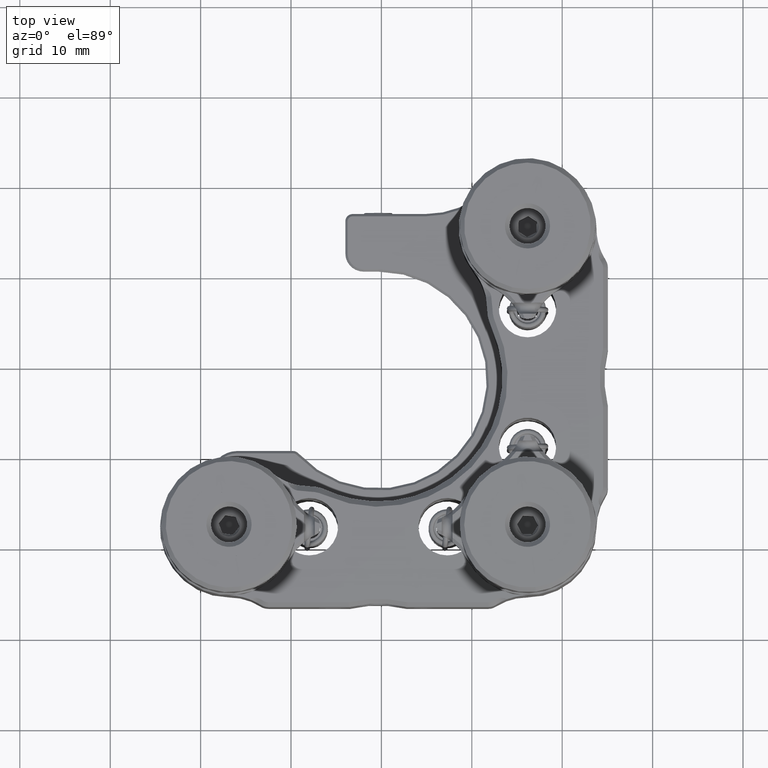
[diagram: clean part render]
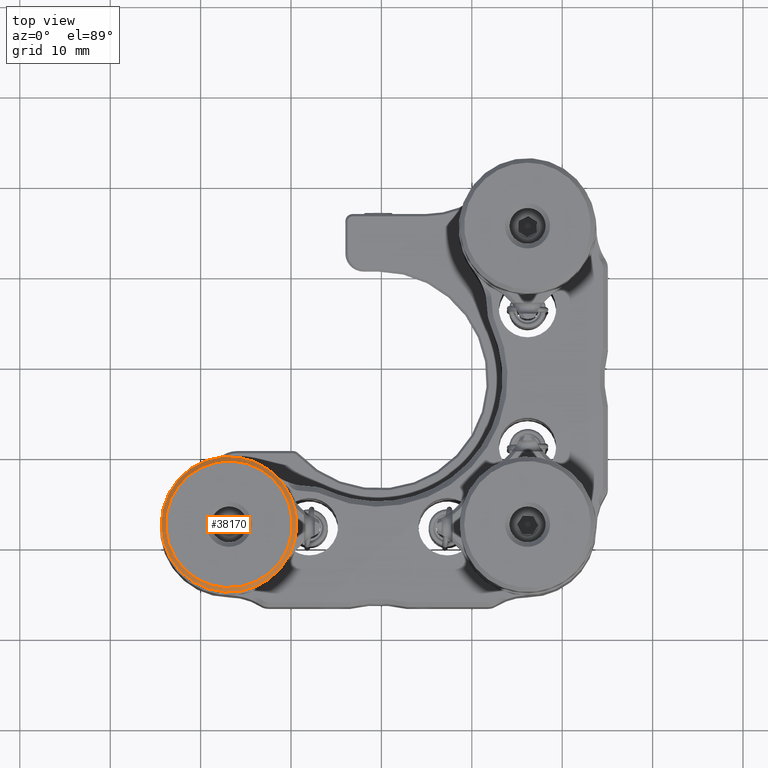
[diagram: same view with one face highlighted and labeled with its STEP entity id]
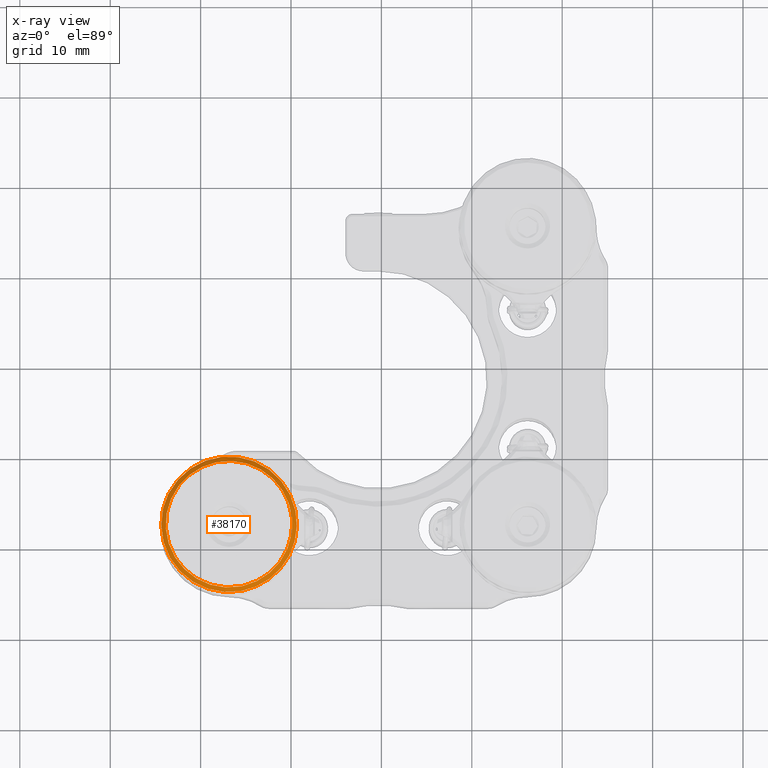
[diagram: x-ray of the same camera — body ghosted, the highlighted face saturated]
A machine part, top view. The second image highlights one B-rep face of the part: STEP entity #38170.
The next image is the same camera in x-ray: the body ghosted, the highlighted face saturated — about 0% of this face is hidden behind the body in this view.
In plain terms, the highlighted conical surface has half-angle 45 deg.
Its self-contained STEP definition (entity closure, byte-faithful):
#575 = DIRECTION ( 'NONE',  ( -0.9807418442196327302, -0.1953085635518161667, 0.000000000000000000 ) ) ;
#2692 = CARTESIAN_POINT ( 'NONE',  ( -35.37871953103136491, 5.272371085360878951, 53.31038921440163847 ) ) ;
#2857 = CIRCLE ( 'NONE', #33765, 7.500000000000001776 ) ;
#3399 = DIRECTION ( 'NONE',  ( -2.390930686497921843E-17, 1.478624013833668581E-16, -1.000000000000000000 ) ) ;
#4501 = EDGE_CURVE ( 'NONE', #50241, #55131, #25046, .T. ) ;
#5218 = ORIENTED_EDGE ( 'NONE', *, *, #14361, .T. ) ;
#8568 = ORIENTED_EDGE ( 'NONE', *, *, #49174, .F. ) ;
#8870 = DIRECTION ( 'NONE',  ( -0.9807418442196326192, -0.1953085635518160834, 0.000000000000000000 ) ) ;
#9776 = DIRECTION ( 'NONE',  ( 0.9807418442196326192, 0.1953085635518160834, 0.000000000000000000 ) ) ;
#11225 = DIRECTION ( 'NONE',  ( -0.9807418442196327302, -0.1953085635518161667, 0.000000000000000000 ) ) ;
#11308 = CARTESIAN_POINT ( 'NONE',  ( -29.50328443473926399, 13.57891162388715678, 52.81038921440163136 ) ) ;
#12335 = CARTESIAN_POINT ( 'NONE',  ( -36.85884826638650935, 12.11409739724853551, 53.30038921440164046 ) ) ;
#13790 = CIRCLE ( 'NONE', #51906, 6.999999999999994671 ) ;
#14361 = EDGE_CURVE ( 'NONE', #55131, #24962, #13790, .T. ) ;
#15744 = CARTESIAN_POINT ( 'NONE',  ( -38.22600821124921566, 18.97929030678595552, 53.31038921440163847 ) ) ;
#16168 = VERTEX_POINT ( 'NONE', #11308 ) ;
#16860 = CARTESIAN_POINT ( 'NONE',  ( -35.60307520004052861, 5.217494319947371118, 53.30038921440164046 ) ) ;
#17192 = AXIS2_PLACEMENT_3D ( 'NONE', #48561, #3399, #8870 ) ;
#17507 = DIRECTION ( 'NONE',  ( -0.9807418442196368380, -0.1953085635517951557, 0.000000000000000000 ) ) ;
#19626 = CARTESIAN_POINT ( 'NONE',  ( -36.85884826638650935, 12.11409739724853551, 53.31038921440163847 ) ) ;
#20577 = DIRECTION ( 'NONE',  ( -2.390930686497921843E-17, 1.478624013833668581E-16, -1.000000000000000000 ) ) ;
#20603 = DIRECTION ( 'NONE',  ( -2.390930686497921843E-17, 1.478624013833668581E-16, -1.000000000000000000 ) ) ;
#21371 = LINE ( 'NONE', #41050, #27194 ) ;
#22874 = EDGE_CURVE ( 'NONE', #31851, #34295, #34160, .T. ) ;
#24962 = VERTEX_POINT ( 'NONE', #2692 ) ;
#25046 = CIRCLE ( 'NONE', #41537, 6.999999999999994671 ) ;
#25277 = ORIENTED_EDGE ( 'NONE', *, *, #22874, .F. ) ;
#25888 = CARTESIAN_POINT ( 'NONE',  ( -36.85884826638650935, 12.11409739724853551, 52.81038921440163136 ) ) ;
#27194 = VECTOR ( 'NONE', #41994, 1000.000000000000114 ) ;
#27198 = DIRECTION ( 'NONE',  ( 2.390930686497921843E-17, -1.478624013833668581E-16, 1.000000000000000000 ) ) ;
#29784 = DIRECTION ( 'NONE',  ( -2.390930686497921843E-17, 1.478624013833668581E-16, -1.000000000000000000 ) ) ;
#31851 = VERTEX_POINT ( 'NONE', #42250 ) ;
#33765 = AXIS2_PLACEMENT_3D ( 'NONE', #25888, #29784, #9776 ) ;
#33805 = VECTOR ( 'NONE', #41699, 1000.000000000000114 ) ;
#34160 = CIRCLE ( 'NONE', #50640, 7.009999999999995346 ) ;
#34295 = VERTEX_POINT ( 'NONE', #51788 ) ;
#38077 = EDGE_LOOP ( 'NONE', ( #5218, #46554, #25277, #42415, #39094 ) ) ;
#38170 = ADVANCED_FACE ( 'NONE', ( #63081, #63725 ), #45073, .T. ) ;
#39094 = ORIENTED_EDGE ( 'NONE', *, *, #4501, .T. ) ;
#41050 = CARTESIAN_POINT ( 'NONE',  ( -35.37871953103136491, 5.272371085360878951, 53.31038921440163847 ) ) ;
#41537 = AXIS2_PLACEMENT_3D ( 'NONE', #19626, #20577, #575 ) ;
#41699 = DIRECTION ( 'NONE',  ( -0.1381133768887241875, 0.6935362459174053695, 0.7070588170182062759 ) ) ;
#41994 = DIRECTION ( 'NONE',  ( 0.1381133768887241875, -0.6935362459174053695, -0.7070588170182062759 ) ) ;
#42250 = CARTESIAN_POINT ( 'NONE',  ( -35.60307520004052861, 5.217494319947371118, 53.30038921440164046 ) ) ;
#42253 = EDGE_CURVE ( 'NONE', #24962, #34295, #21371, .T. ) ;
#42415 = ORIENTED_EDGE ( 'NONE', *, *, #51351, .T. ) ;
#43054 = CARTESIAN_POINT ( 'NONE',  ( -35.60502855064679295, 5.227303068940024389, 53.31038921440163847 ) ) ;
#45073 = CONICAL_SURFACE ( 'NONE', #17192, 7.500000000000001776, 0.7853981633974492782 ) ;
#46554 = ORIENTED_EDGE ( 'NONE', *, *, #42253, .T. ) ;
#48561 = CARTESIAN_POINT ( 'NONE',  ( -36.85884826638650935, 12.11409739724853551, 52.81038921440163136 ) ) ;
#49174 = EDGE_CURVE ( 'NONE', #16168, #16168, #2857, .T. ) ;
#50241 = VERTEX_POINT ( 'NONE', #43054 ) ;
#50640 = AXIS2_PLACEMENT_3D ( 'NONE', #12335, #27198, #17507 ) ;
#51351 = EDGE_CURVE ( 'NONE', #31851, #50241, #61675, .T. ) ;
#51788 = CARTESIAN_POINT ( 'NONE',  ( -35.37676618042510057, 5.262562336368224791, 53.30038921440164046 ) ) ;
#51906 = AXIS2_PLACEMENT_3D ( 'NONE', #54485, #20603, #11225 ) ;
#54485 = CARTESIAN_POINT ( 'NONE',  ( -36.85884826638650935, 12.11409739724853551, 53.31038921440163847 ) ) ;
#55131 = VERTEX_POINT ( 'NONE', #15744 ) ;
#55525 = EDGE_LOOP ( 'NONE', ( #8568 ) ) ;
#61675 = LINE ( 'NONE', #16860, #33805 ) ;
#63081 = FACE_OUTER_BOUND ( 'NONE', #55525, .T. ) ;
#63725 = FACE_BOUND ( 'NONE', #38077, .T. ) ;